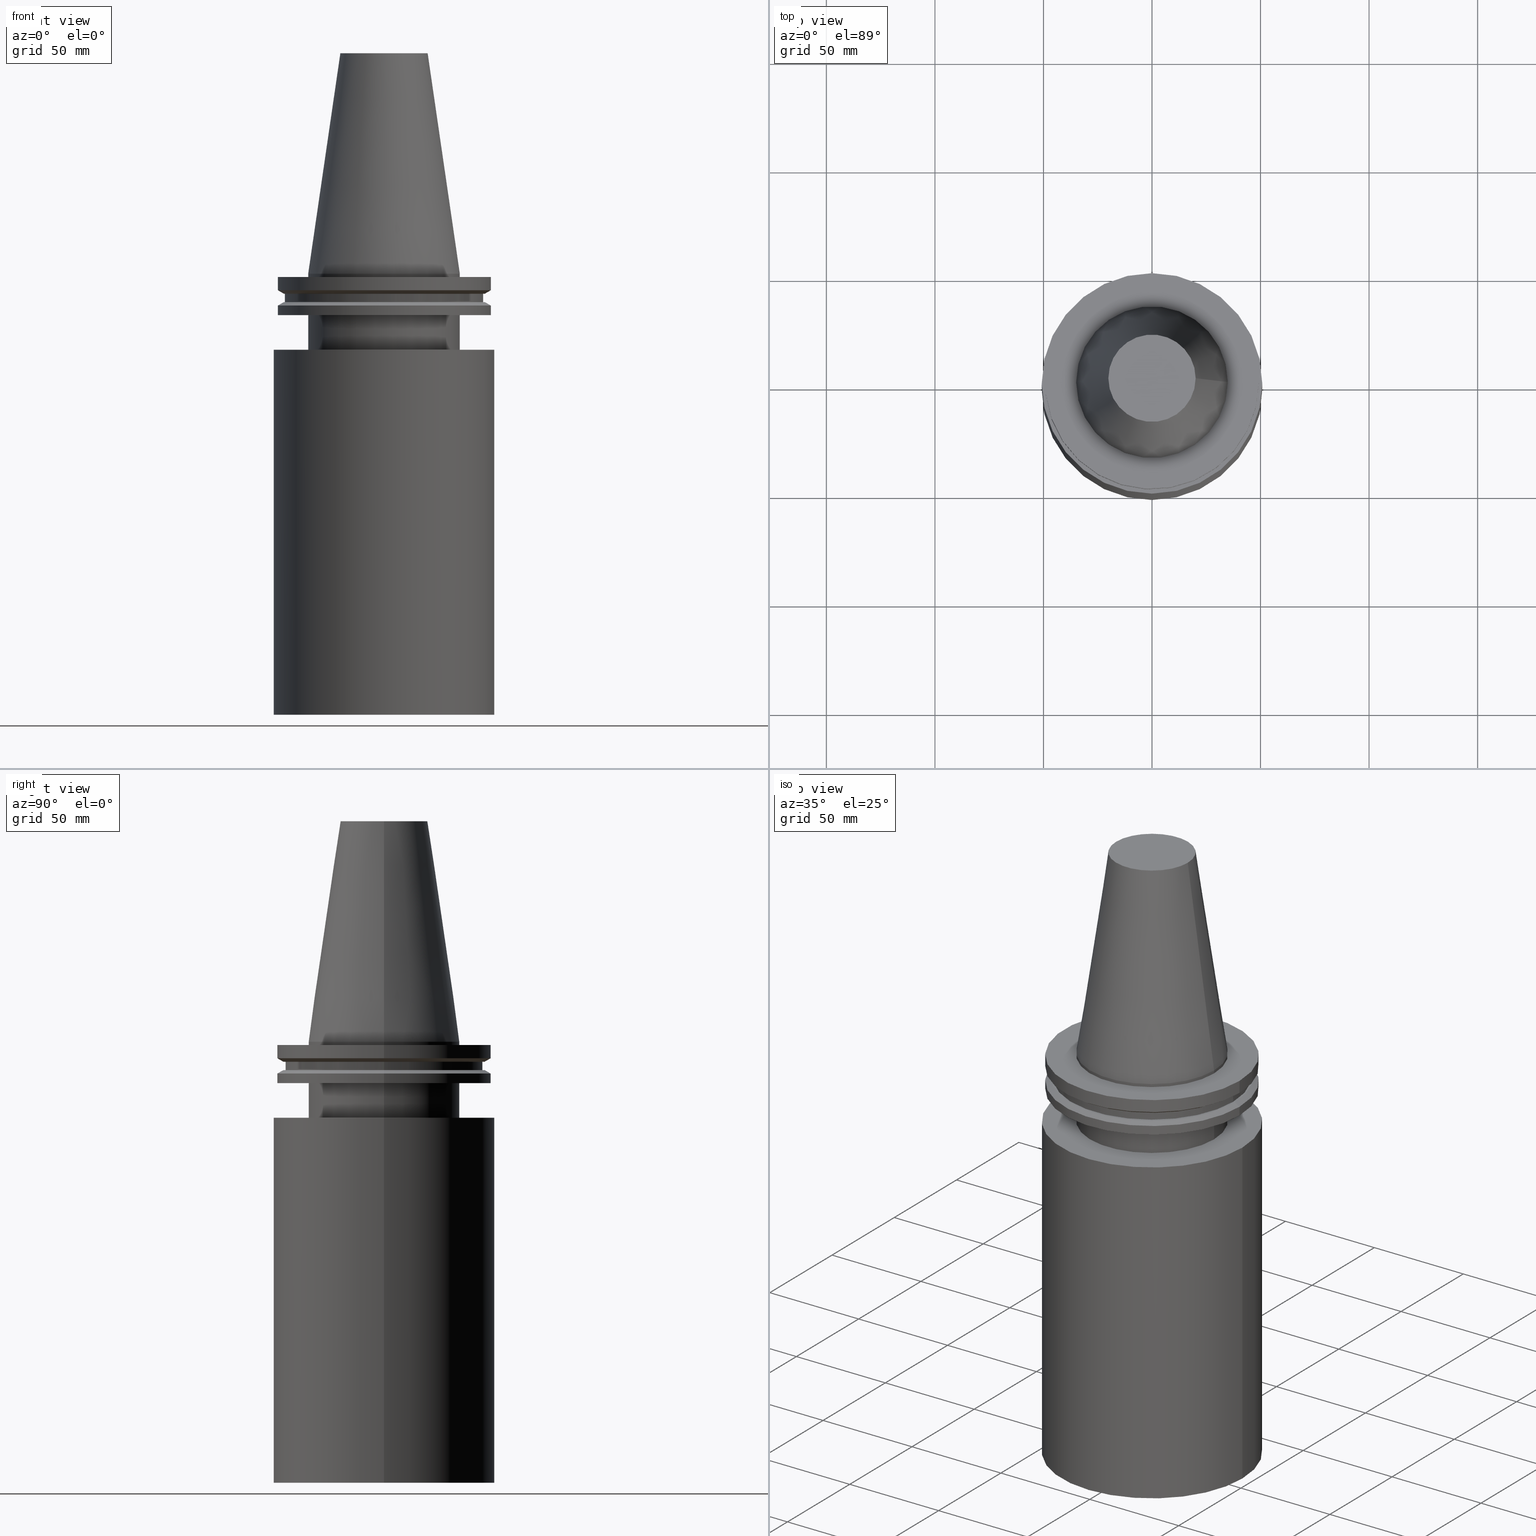
[diagram: canonical four-view strip — front | top / right | iso, engineering-drawing reading convention]
A machine part, canonical four-view strip (front | top / right | iso — engineering-drawing reading convention). The complete STEP part file that produces these views, byte-faithful:
ISO-10303-21;
HEADER;
FILE_DESCRIPTION (( 'STEP AP203' ),
    '1' );
FILE_NAME ('BVC50_BB4_000_8.stp',
    '2022-03-09T17:29:53',
    ( '' ),
    ( '' ),
    'SwSTEP 2.0',
    'SolidWorks 2021',
    '' );
FILE_SCHEMA (( 'CONFIG_CONTROL_DESIGN' ));
ENDSEC;

DATA;
#1 = ORIENTED_EDGE ( 'NONE', *, *, #232, .F. ) ;
#2 = ADVANCED_FACE ( 'NONE', ( #349, #250 ), #74, .T. ) ;
#3 = AXIS2_PLACEMENT_3D ( 'NONE', #51, #323, #321 ) ;
#4 = ORGANIZATION ( 'UNSPECIFIED', 'UNSPECIFIED', '' ) ;
#5 = DIRECTION ( 'NONE',  ( 1.000000000000000000, 0.000000000000000000, 0.000000000000000000 ) ) ;
#6 = EDGE_LOOP ( 'NONE', ( #1 ) ) ;
#7 = CARTESIAN_POINT ( 'NONE',  ( 49.21499999999999631, 0.000000000000000000, -1.499999999999987566 ) ) ;
#8 = ORIENTED_EDGE ( 'NONE', *, *, #375, .F. ) ;
#9 = APPROVAL ( #38, 'UNSPECIFIED' ) ;
#10 = ORIENTED_EDGE ( 'NONE', *, *, #235, .F. ) ;
#11 = CIRCLE ( 'NONE', #61, 50.79999999999999716 ) ;
#12 = CARTESIAN_POINT ( 'NONE',  ( 34.92499999999999716, 0.000000000000000000, -35.00000000000000000 ) ) ;
#13 = ORIENTED_EDGE ( 'NONE', *, *, #375, .T. ) ;
#14 = APPROVAL_ROLE ( '' ) ;
#15 = CARTESIAN_POINT ( 'NONE',  ( 0.000000000000000000, 0.000000000000000000, 0.000000000000000000 ) ) ;
#16 = DIRECTION ( 'NONE',  ( 1.000000000000000000, 0.000000000000000000, 0.000000000000000000 ) ) ;
#17 = APPROVAL_DATE_TIME ( #50, #312 ) ;
#18 = CIRCLE ( 'NONE', #96, 46.43919780457007818 ) ;
#19 = FACE_OUTER_BOUND ( 'NONE', #253, .T. ) ;
#20 = LOCAL_TIME ( 11, 29, 53.00000000000000000, #378 ) ;
#21 = PERSON_AND_ORGANIZATION ( #39, #4 ) ;
#22 = ADVANCED_FACE ( 'NONE', ( #166, #255 ), #261, .F. ) ;
#23 = DIRECTION ( 'NONE',  ( 1.000000000000000000, 0.000000000000000000, 0.000000000000000000 ) ) ;
#24 = DIRECTION ( 'NONE',  ( -0.000000000000000000, -0.000000000000000000, 1.000000000000000000 ) ) ;
#25 = FACE_OUTER_BOUND ( 'NONE', #124, .T. ) ;
#26 = FACE_BOUND ( 'NONE', #269, .T. ) ;
#27 = EDGE_CURVE ( 'NONE', #283, #283, #11, .T. ) ;
#28 = CARTESIAN_POINT ( 'NONE',  ( 0.000000000000000000, 0.000000000000000000, -35.00000000000000000 ) ) ;
#29 = CARTESIAN_POINT ( 'NONE',  ( 0.000000000000000000, 0.000000000000000000, -14.65761014474876944 ) ) ;
#30 = CIRCLE ( 'NONE', #252, 34.92499999999999716 ) ;
#31 = DIRECTION ( 'NONE',  ( 0.000000000000000000, -0.000000000000000000, 1.000000000000000000 ) ) ;
#32 = PERSON_AND_ORGANIZATION_ROLE ( 'design_owner' ) ;
#33 = EDGE_LOOP ( 'NONE', ( #190 ) ) ;
#34 = VERTEX_POINT ( 'NONE', #287 ) ;
#35 = ORIENTED_EDGE ( 'NONE', *, *, #80, .T. ) ;
#36 = ADVANCED_FACE ( 'NONE', ( #383, #19 ), #327, .F. ) ;
#37 = EDGE_LOOP ( 'NONE', ( #122 ) ) ;
#38 = APPROVAL_STATUS ( 'not_yet_approved' ) ;
#39 = PERSON ( 'UNSPECIFIED', 'UNSPECIFIED', 'UNSPECIFIED', ('UNSPECIFIED'), ('UNSPECIFIED'), ('UNSPECIFIED') ) ;
#40 = ORIENTED_EDGE ( 'NONE', *, *, #66, .T. ) ;
#41 = VERTEX_POINT ( 'NONE', #340 ) ;
#42 = EDGE_LOOP ( 'NONE', ( #282 ) ) ;
#43 = AXIS2_PLACEMENT_3D ( 'NONE', #168, #198, #257 ) ;
#44 = ADVANCED_FACE ( 'NONE', ( #385, #387 ), #380, .T. ) ;
#45 = CARTESIAN_POINT ( 'NONE',  ( 0.000000000000000000, 49.21499999999999631, -1.499999999999992895 ) ) ;
#46 = APPROVAL_STATUS ( 'not_yet_approved' ) ;
#47 = CARTESIAN_POINT ( 'NONE',  ( 0.000000000000000000, 0.000000000000000000, -9.204999999999991189 ) ) ;
#48 = PERSON_AND_ORGANIZATION_ROLE ( 'design_supplier' ) ;
#49 = DIRECTION ( 'NONE',  ( 1.000000000000000000, 0.000000000000000000, 0.000000000000000000 ) ) ;
#50 = DATE_AND_TIME ( #381, #20 ) ;
#51 = CARTESIAN_POINT ( 'NONE',  ( 0.000000000000000000, 0.000000000000000000, 101.5999999999999943 ) ) ;
#52 = CARTESIAN_POINT ( 'NONE',  ( 0.000000000000000000, 0.000000000000000000, -19.04999999999999716 ) ) ;
#53 = FACE_OUTER_BOUND ( 'NONE', #286, .T. ) ;
#54 = CARTESIAN_POINT ( 'NONE',  ( 0.000000000000000000, 49.21499999999998920, -19.04999999999999716 ) ) ;
#55 = MANIFOLD_SOLID_BREP ( 'BB', #181 ) ;
#56 = AXIS2_PLACEMENT_3D ( 'NONE', #337, #83, #305 ) ;
#57 = DATE_TIME_ROLE ( 'classification_date' ) ;
#58 = CARTESIAN_POINT ( 'NONE',  ( 0.000000000000000000, 0.000000000000000000, -14.65761014474876944 ) ) ;
#59 = DIRECTION ( 'NONE',  ( -0.000000000000000000, -0.000000000000000000, 1.000000000000000000 ) ) ;
#60 = CARTESIAN_POINT ( 'NONE',  ( 0.000000000000000000, 0.000000000000000000, 101.5999999999999943 ) ) ;
#61 = AXIS2_PLACEMENT_3D ( 'NONE', #265, #134, #23 ) ;
#62 = VERTEX_POINT ( 'NONE', #310 ) ;
#63 = EDGE_LOOP ( 'NONE', ( #40 ) ) ;
#64 = CARTESIAN_POINT ( 'NONE',  ( 45.64500000000000313, 0.000000000000000000, -9.204999999999991189 ) ) ;
#65 = EDGE_LOOP ( 'NONE', ( #218 ) ) ;
#66 = EDGE_CURVE ( 'NONE', #395, #395, #18, .T. ) ;
#67 = AXIS2_PLACEMENT_3D ( 'NONE', #52, #292, #171 ) ;
#68 = APPROVAL_PERSON_ORGANIZATION ( #329, #167, #14 ) ;
#69 = EDGE_LOOP ( 'NONE', ( #126 ) ) ;
#70 = VERTEX_POINT ( 'NONE', #151 ) ;
#71 = EDGE_LOOP ( 'NONE', ( #347 ) ) ;
#72 = EDGE_CURVE ( 'NONE', #62, #62, #289, .T. ) ;
#73 = PERSON_AND_ORGANIZATION_ROLE ( 'creator' ) ;
#74 = CYLINDRICAL_SURFACE ( 'NONE', #212, 34.92499999999999005 ) ;
#75 = CARTESIAN_POINT ( 'NONE',  ( 0.000000000000000000, 0.000000000000000000, -19.04999999999999716 ) ) ;
#76 = APPROVAL_DATE_TIME ( #105, #9 ) ;
#77 = PLANE ( 'NONE',  #103 ) ;
#78 = APPROVAL_ROLE ( '' ) ;
#79 = DIRECTION ( 'NONE',  ( 1.000000000000000000, 0.000000000000000000, 0.000000000000000000 ) ) ;
#80 = EDGE_CURVE ( 'NONE', #370, #370, #111, .T. ) ;
#81 = FACE_BOUND ( 'NONE', #156, .T. ) ;
#82 = AXIS2_PLACEMENT_3D ( 'NONE', #388, #360, #175 ) ;
#83 = DIRECTION ( 'NONE',  ( -0.000000000000000000, -0.000000000000000000, 1.000000000000000000 ) ) ;
#84 = CARTESIAN_POINT ( 'NONE',  ( 0.000000000000000000, 0.000000000000000000, 101.5999999999999943 ) ) ;
#85 = DIRECTION ( 'NONE',  ( -0.000000000000000000, -0.000000000000000000, 1.000000000000000000 ) ) ;
#86 = AXIS2_PLACEMENT_3D ( 'NONE', #117, #238, #363 ) ;
#87 = SECURITY_CLASSIFICATION ( '', '', #224 ) ;
#88 = CARTESIAN_POINT ( 'NONE',  ( 0.000000000000000000, 0.000000000000000000, -1.499999999999987566 ) ) ;
#89 = EDGE_CURVE ( 'NONE', #222, #222, #205, .T. ) ;
#90 = DIRECTION ( 'NONE',  ( 1.000000000000000000, 0.000000000000000000, 0.000000000000000000 ) ) ;
#91 = EDGE_LOOP ( 'NONE', ( #150 ) ) ;
#92 = VERTEX_POINT ( 'NONE', #182 ) ;
#93 = EDGE_LOOP ( 'NONE', ( #247 ) ) ;
#94 = MECHANICAL_CONTEXT ( 'NONE', #330, 'mechanical' ) ;
#95 = ORIENTED_EDGE ( 'NONE', *, *, #66, .F. ) ;
#96 = AXIS2_PLACEMENT_3D ( 'NONE', #170, #231, #264 ) ;
#97 = PRODUCT_DEFINITION_FORMATION_WITH_SPECIFIED_SOURCE ( 'ANY', '', #225, .NOT_KNOWN. ) ;
#98 = APPROVAL_ROLE ( '' ) ;
#99 = EDGE_LOOP ( 'NONE', ( #220 ) ) ;
#100 = EDGE_LOOP ( 'NONE', ( #245 ) ) ;
#101 = ADVANCED_FACE ( 'NONE', ( #234, #108 ), #357, .T. ) ;
#102 = CARTESIAN_POINT ( 'NONE',  ( 0.000000000000000000, 0.000000000000000000, 101.5999999999999943 ) ) ;
#103 = AXIS2_PLACEMENT_3D ( 'NONE', #45, #331, #195 ) ;
#104 = AXIS2_PLACEMENT_3D ( 'NONE', #243, #361, #202 ) ;
#105 = DATE_AND_TIME ( #259, #206 ) ;
#106 = ADVANCED_FACE ( 'NONE', ( #81, #200 ), #77, .F. ) ;
#107 = APPROVAL_PERSON_ORGANIZATION ( #227, #312, #78 ) ;
#108 = FACE_OUTER_BOUND ( 'NONE', #71, .T. ) ;
#109 = DIRECTION ( 'NONE',  ( -0.000000000000000000, -0.000000000000000000, 1.000000000000000000 ) ) ;
#110 = DIRECTION ( 'NONE',  ( -0.000000000000000000, -0.000000000000000000, 1.000000000000000000 ) ) ;
#111 = CIRCLE ( 'NONE', #382, 20.10819343178871321 ) ;
#112 = FACE_OUTER_BOUND ( 'NONE', #69, .T. ) ;
#113 =( GEOMETRIC_REPRESENTATION_CONTEXT ( 3 ) GLOBAL_UNCERTAINTY_ASSIGNED_CONTEXT ( ( #366 ) ) GLOBAL_UNIT_ASSIGNED_CONTEXT ( ( #367, #211, #125 ) ) REPRESENTATION_CONTEXT ( 'NONE', 'WORKASPACE' ) );
#114 = EDGE_CURVE ( 'NONE', #155, #155, #239, .T. ) ;
#115 = FACE_OUTER_BOUND ( 'NONE', #185, .T. ) ;
#116 = FACE_OUTER_BOUND ( 'NONE', #162, .T. ) ;
#117 = CARTESIAN_POINT ( 'NONE',  ( 0.000000000000000000, 20.10819343178871321, 101.5999999999999943 ) ) ;
#118 = EDGE_CURVE ( 'NONE', #123, #123, #163, .T. ) ;
#119 = FACE_BOUND ( 'NONE', #315, .T. ) ;
#120 = PLANE ( 'NONE',  #104 ) ;
#121 = CARTESIAN_POINT ( 'NONE',  ( 49.21499999999998920, 0.000000000000000000, -19.04999999999999716 ) ) ;
#122 = ORIENTED_EDGE ( 'NONE', *, *, #89, .T. ) ;
#123 = VERTEX_POINT ( 'NONE', #160 ) ;
#124 = EDGE_LOOP ( 'NONE', ( #284 ) ) ;
#125 =( NAMED_UNIT ( * ) SI_UNIT ( $, .STERADIAN. ) SOLID_ANGLE_UNIT ( ) );
#126 = ORIENTED_EDGE ( 'NONE', *, *, #72, .F. ) ;
#127 = CARTESIAN_POINT ( 'NONE',  ( 46.43919780457007818, 0.000000000000000000, -9.204999999999991189 ) ) ;
#128 = EDGE_CURVE ( 'NONE', #34, #34, #130, .T. ) ;
#129 = EDGE_LOOP ( 'NONE', ( #278 ) ) ;
#130 = CIRCLE ( 'NONE', #244, 34.92499999999999005 ) ;
#131 = LOCAL_TIME ( 11, 29, 53.00000000000000000, #297 ) ;
#132 = CARTESIAN_POINT ( 'NONE',  ( 45.64500000000000313, 0.000000000000000000, -13.05499999999999794 ) ) ;
#133 = EDGE_LOOP ( 'NONE', ( #223 ) ) ;
#134 = DIRECTION ( 'NONE',  ( -0.000000000000000000, -0.000000000000000000, 1.000000000000000000 ) ) ;
#135 = DIRECTION ( 'NONE',  ( -0.000000000000000000, -0.000000000000000000, 1.000000000000000000 ) ) ;
#136 = AXIS2_PLACEMENT_3D ( 'NONE', #88, #336, #179 ) ;
#137 = CONICAL_SURFACE ( 'NONE', #82, 34.92499999999999005, 0.1448138465474119452 ) ;
#138 = DIRECTION ( 'NONE',  ( 1.000000000000000000, 0.000000000000000000, 0.000000000000000000 ) ) ;
#139 = DATE_AND_TIME ( #348, #369 ) ;
#140 = CARTESIAN_POINT ( 'NONE',  ( 0.000000000000000000, 45.64500000000000313, -13.05499999999999794 ) ) ;
#141 = DIRECTION ( 'NONE',  ( -1.000000000000000000, 0.000000000000000000, -0.000000000000000000 ) ) ;
#142 = DIRECTION ( 'NONE',  ( 0.000000000000000000, -0.000000000000000000, 1.000000000000000000 ) ) ;
#143 = AXIS2_PLACEMENT_3D ( 'NONE', #54, #31, #276 ) ;
#144 = DIRECTION ( 'NONE',  ( -0.000000000000000000, -0.000000000000000000, 1.000000000000000000 ) ) ;
#145 = DIRECTION ( 'NONE',  ( 1.000000000000000000, 0.000000000000000000, 0.000000000000000000 ) ) ;
#146 = DIRECTION ( 'NONE',  ( 0.000000000000000000, 0.000000000000000000, -1.000000000000000000 ) ) ;
#147 = AXIS2_PLACEMENT_3D ( 'NONE', #304, #365, #302 ) ;
#148 = CC_DESIGN_APPROVAL ( #167, ( #87 ) ) ;
#149 = DIRECTION ( 'NONE',  ( -1.000000000000000000, 0.000000000000000000, 0.000000000000000000 ) ) ;
#150 = ORIENTED_EDGE ( 'NONE', *, *, #235, .T. ) ;
#151 = CARTESIAN_POINT ( 'NONE',  ( 49.21499999999998920, 0.000000000000000000, -14.65761014474876944 ) ) ;
#152 = ORIENTED_EDGE ( 'NONE', *, *, #118, .T. ) ;
#153 = AXIS2_PLACEMENT_3D ( 'NONE', #140, #230, #325 ) ;
#154 = CC_DESIGN_SECURITY_CLASSIFICATION ( #87, ( #97 ) ) ;
#155 = VERTEX_POINT ( 'NONE', #121 ) ;
#156 = EDGE_LOOP ( 'NONE', ( #342 ) ) ;
#157 = ADVANCED_FACE ( 'NONE', ( #112, #228 ), #236, .T. ) ;
#158 = VERTEX_POINT ( 'NONE', #372 ) ;
#159 = ORIENTED_EDGE ( 'NONE', *, *, #176, .T. ) ;
#160 = CARTESIAN_POINT ( 'NONE',  ( 46.43919780457007818, 0.000000000000000000, -13.05499999999999794 ) ) ;
#161 = PRODUCT_DEFINITION ( 'UNKNOWN', '', #97, #241 ) ;
#162 = EDGE_LOOP ( 'NONE', ( #10 ) ) ;
#163 = CIRCLE ( 'NONE', #43, 46.43919780457007818 ) ;
#164 = AXIS2_PLACEMENT_3D ( 'NONE', #270, #144, #389 ) ;
#165 = DIRECTION ( 'NONE',  ( -0.000000000000000000, -0.000000000000000000, 1.000000000000000000 ) ) ;
#166 = FACE_BOUND ( 'NONE', #6, .T. ) ;
#167 = APPROVAL ( #46, 'UNSPECIFIED' ) ;
#168 = CARTESIAN_POINT ( 'NONE',  ( 0.000000000000000000, 0.000000000000000000, -13.05499999999999794 ) ) ;
#169 = DATE_TIME_ROLE ( 'creation_date' ) ;
#170 = CARTESIAN_POINT ( 'NONE',  ( 0.000000000000000000, 0.000000000000000000, -9.204999999999991189 ) ) ;
#171 = DIRECTION ( 'NONE',  ( 1.000000000000000000, 0.000000000000000000, 0.000000000000000000 ) ) ;
#172 = PRODUCT_RELATED_PRODUCT_CATEGORY ( 'detail', '', ( #225 ) ) ;
#173 = CYLINDRICAL_SURFACE ( 'NONE', #267, 45.64500000000000313 ) ;
#174 = CIRCLE ( 'NONE', #147, 50.79999999999999716 ) ;
#175 = DIRECTION ( 'NONE',  ( -1.000000000000000000, 0.000000000000000000, 0.000000000000000000 ) ) ;
#176 = EDGE_CURVE ( 'NONE', #217, #217, #328, .T. ) ;
#177 = DIRECTION ( 'NONE',  ( 1.000000000000000000, 0.000000000000000000, 0.000000000000000000 ) ) ;
#178 = EDGE_CURVE ( 'NONE', #158, #158, #174, .T. ) ;
#179 = DIRECTION ( 'NONE',  ( 1.000000000000000000, 0.000000000000000000, 0.000000000000000000 ) ) ;
#180 = CARTESIAN_POINT ( 'NONE',  ( 0.000000000000000000, 46.43919780457007818, -9.204999999999998295 ) ) ;
#181 = CLOSED_SHELL ( 'NONE', ( #368, #183, #157, #279, #199, #260, #36, #263, #275, #394, #44, #106, #2, #22, #101, #362 ) ) ;
#182 = CARTESIAN_POINT ( 'NONE',  ( 49.21500000000000341, 0.000000000000000000, -7.602389855251287187 ) ) ;
#183 = ADVANCED_FACE ( 'NONE', ( #115 ), #390, .F. ) ;
#184 = ORIENTED_EDGE ( 'NONE', *, *, #201, .T. ) ;
#185 = EDGE_LOOP ( 'NONE', ( #35 ) ) ;
#186 = AXIS2_PLACEMENT_3D ( 'NONE', #102, #109, #293 ) ;
#187 = APPLICATION_PROTOCOL_DEFINITION ( 'international standard', 'config_control_design', 1994, #191 ) ;
#188 = EDGE_LOOP ( 'NONE', ( #95 ) ) ;
#189 = CARTESIAN_POINT ( 'NONE',  ( 50.79999999999999716, 0.000000000000000000, -35.00000000000000000 ) ) ;
#190 = ORIENTED_EDGE ( 'NONE', *, *, #27, .F. ) ;
#191 = APPLICATION_CONTEXT ( 'configuration controlled 3d designs of mechanical parts and assemblies' ) ;
#192 = DIRECTION ( 'NONE',  ( 1.000000000000000000, 0.000000000000000000, 0.000000000000000000 ) ) ;
#193 = COORDINATED_UNIVERSAL_TIME_OFFSET ( 6, 0, .BEHIND. ) ;
#194 = DIRECTION ( 'NONE',  ( 0.000000000000000000, 0.000000000000000000, -1.000000000000000000 ) ) ;
#195 = DIRECTION ( 'NONE',  ( -1.000000000000000000, 0.000000000000000000, -0.000000000000000000 ) ) ;
#196 = CC_DESIGN_DATE_AND_TIME_ASSIGNMENT ( #303, #169, ( #161 ) ) ;
#197 = PERSON_AND_ORGANIZATION_ROLE ( 'creator' ) ;
#198 = DIRECTION ( 'NONE',  ( -0.000000000000000000, -0.000000000000000000, 1.000000000000000000 ) ) ;
#199 = ADVANCED_FACE ( 'NONE', ( #308, #272 ), #207, .T. ) ;
#200 = FACE_OUTER_BOUND ( 'NONE', #37, .T. ) ;
#201 = EDGE_CURVE ( 'NONE', #41, #41, #258, .T. ) ;
#202 = DIRECTION ( 'NONE',  ( 1.000000000000000000, 0.000000000000000000, 0.000000000000000000 ) ) ;
#203 = DIRECTION ( 'NONE',  ( 1.000000000000000000, 0.000000000000000000, 0.000000000000000000 ) ) ;
#204 = EDGE_CURVE ( 'NONE', #70, #70, #295, .T. ) ;
#205 = CIRCLE ( 'NONE', #339, 49.21499999999999631 ) ;
#206 = LOCAL_TIME ( 11, 29, 53.00000000000000000, #324 ) ;
#207 = CYLINDRICAL_SURFACE ( 'NONE', #313, 49.21499999999998920 ) ;
#208 = ADVANCED_BREP_SHAPE_REPRESENTATION ( 'BVC50_BB4_000_8', ( #55, #281 ), #113 ) ;
#209 = DIRECTION ( 'NONE',  ( -0.000000000000000000, -0.000000000000000000, 1.000000000000000000 ) ) ;
#210 = FACE_OUTER_BOUND ( 'NONE', #42, .T. ) ;
#211 =( NAMED_UNIT ( * ) PLANE_ANGLE_UNIT ( ) SI_UNIT ( $, .RADIAN. ) );
#212 = AXIS2_PLACEMENT_3D ( 'NONE', #309, #294, #79 ) ;
#213 = CC_DESIGN_APPROVAL ( #312, ( #97 ) ) ;
#214 = CC_DESIGN_PERSON_AND_ORGANIZATION_ASSIGNMENT ( #351, #322, ( #87 ) ) ;
#215 = DIRECTION ( 'NONE',  ( 1.000000000000000000, 0.000000000000000000, 0.000000000000000000 ) ) ;
#216 = EDGE_LOOP ( 'NONE', ( #377 ) ) ;
#217 = VERTEX_POINT ( 'NONE', #64 ) ;
#218 = ORIENTED_EDGE ( 'NONE', *, *, #27, .T. ) ;
#219 = CARTESIAN_POINT ( 'NONE',  ( 0.000000000000000000, 0.000000000000000000, -9.204999999999991189 ) ) ;
#220 = ORIENTED_EDGE ( 'NONE', *, *, #128, .F. ) ;
#221 = CIRCLE ( 'NONE', #56, 49.21500000000000341 ) ;
#222 = VERTEX_POINT ( 'NONE', #7 ) ;
#223 = ORIENTED_EDGE ( 'NONE', *, *, #204, .T. ) ;
#224 = SECURITY_CLASSIFICATION_LEVEL ( 'unclassified' ) ;
#225 = PRODUCT ( 'BVC50_BB4_000_8', 'BVC50_BB4_000_8', '', ( #94 ) ) ;
#226 = ORIENTED_EDGE ( 'NONE', *, *, #118, .F. ) ;
#227 = PERSON_AND_ORGANIZATION ( #39, #4 ) ;
#228 = FACE_OUTER_BOUND ( 'NONE', #100, .T. ) ;
#229 = DATE_AND_TIME ( #233, #131 ) ;
#230 = DIRECTION ( 'NONE',  ( 0.000000000000000000, 0.000000000000000000, -1.000000000000000000 ) ) ;
#231 = DIRECTION ( 'NONE',  ( -0.000000000000000000, -0.000000000000000000, 1.000000000000000000 ) ) ;
#232 = EDGE_CURVE ( 'NONE', #280, #280, #30, .T. ) ;
#233 = CALENDAR_DATE ( 2022, 9, 3 ) ;
#234 = FACE_OUTER_BOUND ( 'NONE', #33, .T. ) ;
#235 = EDGE_CURVE ( 'NONE', #92, #92, #221, .T. ) ;
#236 = CYLINDRICAL_SURFACE ( 'NONE', #3, 34.92499999999999716 ) ;
#237 = FACE_OUTER_BOUND ( 'NONE', #188, .T. ) ;
#238 = DIRECTION ( 'NONE',  ( 0.000000000000000000, 0.000000000000000000, -1.000000000000000000 ) ) ;
#239 = CIRCLE ( 'NONE', #67, 49.21499999999998920 ) ;
#240 = DIRECTION ( 'NONE',  ( 1.000000000000000000, 0.000000000000000000, 0.000000000000000000 ) ) ;
#241 = DESIGN_CONTEXT ( 'detailed design', #191, 'design' ) ;
#242 = PLANE ( 'NONE',  #290 ) ;
#243 = CARTESIAN_POINT ( 'NONE',  ( 0.000000000000000000, 50.79999999999999716, -203.1999999999999886 ) ) ;
#244 = AXIS2_PLACEMENT_3D ( 'NONE', #15, #24, #16 ) ;
#245 = ORIENTED_EDGE ( 'NONE', *, *, #232, .T. ) ;
#246 = CARTESIAN_POINT ( 'NONE',  ( 20.10819343178871321, 0.000000000000000000, 101.5999999999999801 ) ) ;
#247 = ORIENTED_EDGE ( 'NONE', *, *, #178, .F. ) ;
#248 = PRODUCT_DEFINITION_SHAPE ( 'NONE', 'NONE',  #161 ) ;
#249 = DIRECTION ( 'NONE',  ( 0.000000000000000000, 0.000000000000000000, 1.000000000000000000 ) ) ;
#250 = FACE_OUTER_BOUND ( 'NONE', #288, .T. ) ;
#251 = ORIENTED_EDGE ( 'NONE', *, *, #72, .T. ) ;
#252 = AXIS2_PLACEMENT_3D ( 'NONE', #28, #209, #203 ) ;
#253 = EDGE_LOOP ( 'NONE', ( #152 ) ) ;
#254 = PERSON_AND_ORGANIZATION ( #39, #4 ) ;
#255 = FACE_OUTER_BOUND ( 'NONE', #65, .T. ) ;
#256 = PERSON_AND_ORGANIZATION ( #39, #4 ) ;
#257 = DIRECTION ( 'NONE',  ( 1.000000000000000000, 0.000000000000000000, 0.000000000000000000 ) ) ;
#258 = CIRCLE ( 'NONE', #136, 34.92499999999999005 ) ;
#259 = CALENDAR_DATE ( 2022, 9, 3 ) ;
#260 = ADVANCED_FACE ( 'NONE', ( #26, #333 ), #335, .T. ) ;
#261 = PLANE ( 'NONE',  #343 ) ;
#262 = SHAPE_DEFINITION_REPRESENTATION ( #248, #208 ) ;
#263 = ADVANCED_FACE ( 'NONE', ( #274, #53 ), #173, .T. ) ;
#264 = DIRECTION ( 'NONE',  ( 1.000000000000000000, 0.000000000000000000, 0.000000000000000000 ) ) ;
#265 = CARTESIAN_POINT ( 'NONE',  ( 0.000000000000000000, 0.000000000000000000, -35.00000000000000000 ) ) ;
#266 = AXIS2_PLACEMENT_3D ( 'NONE', #359, #355, #192 ) ;
#267 = AXIS2_PLACEMENT_3D ( 'NONE', #60, #392, #90 ) ;
#268 = DIRECTION ( 'NONE',  ( 1.000000000000000000, 0.000000000000000000, 0.000000000000000000 ) ) ;
#269 = EDGE_LOOP ( 'NONE', ( #226 ) ) ;
#270 = CARTESIAN_POINT ( 'NONE',  ( 0.000000000000000000, 0.000000000000000000, -13.05499999999999794 ) ) ;
#271 = CC_DESIGN_PERSON_AND_ORGANIZATION_ASSIGNMENT ( #254, #73, ( #161 ) ) ;
#272 = FACE_OUTER_BOUND ( 'NONE', #311, .T. ) ;
#273 = APPROVAL_PERSON_ORGANIZATION ( #316, #9, #98 ) ;
#274 = FACE_OUTER_BOUND ( 'NONE', #319, .T. ) ;
#275 = ADVANCED_FACE ( 'NONE', ( #237, #119 ), #242, .F. ) ;
#276 = DIRECTION ( 'NONE',  ( 1.000000000000000000, 0.000000000000000000, 0.000000000000000000 ) ) ;
#277 = DIRECTION ( 'NONE',  ( -0.000000000000000000, -0.000000000000000000, 1.000000000000000000 ) ) ;
#278 = ORIENTED_EDGE ( 'NONE', *, *, #89, .F. ) ;
#279 = ADVANCED_FACE ( 'NONE', ( #210, #300 ), #338, .F. ) ;
#280 = VERTEX_POINT ( 'NONE', #12 ) ;
#281 = AXIS2_PLACEMENT_3D ( 'NONE', #346, #249, #215 ) ;
#282 = ORIENTED_EDGE ( 'NONE', *, *, #114, .F. ) ;
#283 = VERTEX_POINT ( 'NONE', #189 ) ;
#284 = ORIENTED_EDGE ( 'NONE', *, *, #128, .T. ) ;
#285 = VERTEX_POINT ( 'NONE', #132 ) ;
#286 = EDGE_LOOP ( 'NONE', ( #13 ) ) ;
#287 = CARTESIAN_POINT ( 'NONE',  ( 34.92499999999999005, 0.000000000000000000, 0.000000000000000000 ) ) ;
#288 = EDGE_LOOP ( 'NONE', ( #184 ) ) ;
#289 = CIRCLE ( 'NONE', #306, 34.92499999999999716 ) ;
#290 = AXIS2_PLACEMENT_3D ( 'NONE', #180, #142, #268 ) ;
#291 = COORDINATED_UNIVERSAL_TIME_OFFSET ( 6, 0, .BEHIND. ) ;
#292 = DIRECTION ( 'NONE',  ( -0.000000000000000000, -0.000000000000000000, 1.000000000000000000 ) ) ;
#293 = DIRECTION ( 'NONE',  ( 1.000000000000000000, 0.000000000000000000, 0.000000000000000000 ) ) ;
#294 = DIRECTION ( 'NONE',  ( -0.000000000000000000, -0.000000000000000000, 1.000000000000000000 ) ) ;
#295 = CIRCLE ( 'NONE', #384, 49.21499999999998920 ) ;
#296 = CIRCLE ( 'NONE', #164, 45.64500000000000313 ) ;
#297 = COORDINATED_UNIVERSAL_TIME_OFFSET ( 6, 0, .BEHIND. ) ;
#298 = CARTESIAN_POINT ( 'NONE',  ( 0.000000000000000000, 0.000000000000000000, -35.00000000000000000 ) ) ;
#299 = DIRECTION ( 'NONE',  ( 1.000000000000000000, 0.000000000000000000, 0.000000000000000000 ) ) ;
#300 = FACE_BOUND ( 'NONE', #379, .T. ) ;
#301 = CONICAL_SURFACE ( 'NONE', #307, 46.43919780457007818, 1.047197551196575205 ) ;
#302 = DIRECTION ( 'NONE',  ( 1.000000000000000000, 0.000000000000000000, 0.000000000000000000 ) ) ;
#303 = DATE_AND_TIME ( #354, #391 ) ;
#304 = CARTESIAN_POINT ( 'NONE',  ( 0.000000000000000000, 0.000000000000000000, -203.1999999999999886 ) ) ;
#305 = DIRECTION ( 'NONE',  ( 1.000000000000000000, 0.000000000000000000, 0.000000000000000000 ) ) ;
#306 = AXIS2_PLACEMENT_3D ( 'NONE', #75, #165, #138 ) ;
#307 = AXIS2_PLACEMENT_3D ( 'NONE', #219, #277, #5 ) ;
#308 = FACE_OUTER_BOUND ( 'NONE', #216, .T. ) ;
#309 = CARTESIAN_POINT ( 'NONE',  ( 0.000000000000000000, 0.000000000000000000, 101.5999999999999943 ) ) ;
#310 = CARTESIAN_POINT ( 'NONE',  ( 34.92499999999999716, 0.000000000000000000, -19.04999999999999716 ) ) ;
#311 = EDGE_LOOP ( 'NONE', ( #376 ) ) ;
#312 = APPROVAL ( #326, 'UNSPECIFIED' ) ;
#313 = AXIS2_PLACEMENT_3D ( 'NONE', #84, #59, #240 ) ;
#314 = AXIS2_PLACEMENT_3D ( 'NONE', #29, #146, #149 ) ;
#315 = EDGE_LOOP ( 'NONE', ( #159 ) ) ;
#316 = PERSON_AND_ORGANIZATION ( #39, #4 ) ;
#317 = ORIENTED_EDGE ( 'NONE', *, *, #80, .F. ) ;
#318 = FACE_BOUND ( 'NONE', #63, .T. ) ;
#319 = EDGE_LOOP ( 'NONE', ( #373 ) ) ;
#320 = CC_DESIGN_PERSON_AND_ORGANIZATION_ASSIGNMENT ( #21, #48, ( #97 ) ) ;
#321 = DIRECTION ( 'NONE',  ( 1.000000000000000000, 0.000000000000000000, 0.000000000000000000 ) ) ;
#322 = PERSON_AND_ORGANIZATION_ROLE ( 'classification_officer' ) ;
#323 = DIRECTION ( 'NONE',  ( -0.000000000000000000, -0.000000000000000000, 1.000000000000000000 ) ) ;
#324 = COORDINATED_UNIVERSAL_TIME_OFFSET ( 6, 0, .BEHIND. ) ;
#325 = DIRECTION ( 'NONE',  ( -1.000000000000000000, 0.000000000000000000, -0.000000000000000000 ) ) ;
#326 = APPROVAL_STATUS ( 'not_yet_approved' ) ;
#327 = PLANE ( 'NONE',  #153 ) ;
#328 = CIRCLE ( 'NONE', #334, 45.64500000000000313 ) ;
#329 = PERSON_AND_ORGANIZATION ( #39, #4 ) ;
#330 = APPLICATION_CONTEXT ( 'configuration controlled 3d designs of mechanical parts and assemblies' ) ;
#331 = DIRECTION ( 'NONE',  ( 0.000000000000000000, 0.000000000000000000, -1.000000000000000000 ) ) ;
#332 = FACE_BOUND ( 'NONE', #345, .T. ) ;
#333 = FACE_OUTER_BOUND ( 'NONE', #133, .T. ) ;
#334 = AXIS2_PLACEMENT_3D ( 'NONE', #47, #135, #145 ) ;
#335 = CONICAL_SURFACE ( 'NONE', #314, 49.21499999999998920, 1.047197551196554333 ) ;
#336 = DIRECTION ( 'NONE',  ( -0.000000000000000000, -0.000000000000000000, 1.000000000000000000 ) ) ;
#337 = CARTESIAN_POINT ( 'NONE',  ( 0.000000000000000000, 0.000000000000000000, -7.602389855251287187 ) ) ;
#338 = PLANE ( 'NONE',  #143 ) ;
#339 = AXIS2_PLACEMENT_3D ( 'NONE', #350, #110, #299 ) ;
#340 = CARTESIAN_POINT ( 'NONE',  ( 34.92499999999999005, 0.000000000000000000, -1.499999999999987566 ) ) ;
#341 = CC_DESIGN_PERSON_AND_ORGANIZATION_ASSIGNMENT ( #344, #32, ( #225 ) ) ;
#342 = ORIENTED_EDGE ( 'NONE', *, *, #201, .F. ) ;
#343 = AXIS2_PLACEMENT_3D ( 'NONE', #298, #194, #141 ) ;
#344 = PERSON_AND_ORGANIZATION ( #39, #4 ) ;
#345 = EDGE_LOOP ( 'NONE', ( #317 ) ) ;
#346 = CARTESIAN_POINT ( 'NONE',  ( 0.000000000000000000, 0.000000000000000000, 0.000000000000000000 ) ) ;
#347 = ORIENTED_EDGE ( 'NONE', *, *, #178, .T. ) ;
#348 = CALENDAR_DATE ( 2022, 9, 3 ) ;
#349 = FACE_OUTER_BOUND ( 'NONE', #99, .T. ) ;
#350 = CARTESIAN_POINT ( 'NONE',  ( 0.000000000000000000, 0.000000000000000000, -1.499999999999987566 ) ) ;
#351 = PERSON_AND_ORGANIZATION ( #39, #4 ) ;
#352 = CC_DESIGN_PERSON_AND_ORGANIZATION_ASSIGNMENT ( #256, #197, ( #97 ) ) ;
#353 = DIRECTION ( 'NONE',  ( -0.000000000000000000, -0.000000000000000000, 1.000000000000000000 ) ) ;
#354 = CALENDAR_DATE ( 2022, 9, 3 ) ;
#355 = DIRECTION ( 'NONE',  ( -0.000000000000000000, -0.000000000000000000, 1.000000000000000000 ) ) ;
#356 = APPROVAL_DATE_TIME ( #139, #167 ) ;
#357 = CYLINDRICAL_SURFACE ( 'NONE', #266, 50.79999999999999716 ) ;
#358 = CC_DESIGN_APPROVAL ( #9, ( #161 ) ) ;
#359 = CARTESIAN_POINT ( 'NONE',  ( 0.000000000000000000, 0.000000000000000000, 0.000000000000000000 ) ) ;
#360 = DIRECTION ( 'NONE',  ( 0.000000000000000000, 0.000000000000000000, -1.000000000000000000 ) ) ;
#361 = DIRECTION ( 'NONE',  ( 0.000000000000000000, -0.000000000000000000, 1.000000000000000000 ) ) ;
#362 = ADVANCED_FACE ( 'NONE', ( #393 ), #120, .F. ) ;
#363 = DIRECTION ( 'NONE',  ( -1.000000000000000000, 0.000000000000000000, -0.000000000000000000 ) ) ;
#364 = CC_DESIGN_DATE_AND_TIME_ASSIGNMENT ( #229, #57, ( #87 ) ) ;
#365 = DIRECTION ( 'NONE',  ( -0.000000000000000000, -0.000000000000000000, 1.000000000000000000 ) ) ;
#366 = UNCERTAINTY_MEASURE_WITH_UNIT (LENGTH_MEASURE( 1.000000000000000082E-05 ), #367, 'distance_accuracy_value', 'NONE');
#367 =( LENGTH_UNIT ( ) NAMED_UNIT ( * ) SI_UNIT ( .MILLI., .METRE. ) );
#368 = ADVANCED_FACE ( 'NONE', ( #332, #25 ), #137, .T. ) ;
#369 = LOCAL_TIME ( 11, 29, 53.00000000000000000, #193 ) ;
#370 = VERTEX_POINT ( 'NONE', #246 ) ;
#371 = EDGE_LOOP ( 'NONE', ( #8 ) ) ;
#372 = CARTESIAN_POINT ( 'NONE',  ( 50.79999999999999716, 0.000000000000000000, -203.1999999999999886 ) ) ;
#373 = ORIENTED_EDGE ( 'NONE', *, *, #176, .F. ) ;
#374 = APPLICATION_PROTOCOL_DEFINITION ( 'international standard', 'config_control_design', 1994, #330 ) ;
#375 = EDGE_CURVE ( 'NONE', #285, #285, #296, .T. ) ;
#376 = ORIENTED_EDGE ( 'NONE', *, *, #114, .T. ) ;
#377 = ORIENTED_EDGE ( 'NONE', *, *, #204, .F. ) ;
#378 = COORDINATED_UNIVERSAL_TIME_OFFSET ( 6, 0, .BEHIND. ) ;
#379 = EDGE_LOOP ( 'NONE', ( #251 ) ) ;
#380 = CYLINDRICAL_SURFACE ( 'NONE', #186, 49.21499999999999631 ) ;
#381 = CALENDAR_DATE ( 2022, 9, 3 ) ;
#382 = AXIS2_PLACEMENT_3D ( 'NONE', #386, #353, #49 ) ;
#383 = FACE_BOUND ( 'NONE', #371, .T. ) ;
#384 = AXIS2_PLACEMENT_3D ( 'NONE', #58, #85, #177 ) ;
#385 = FACE_OUTER_BOUND ( 'NONE', #129, .T. ) ;
#386 = CARTESIAN_POINT ( 'NONE',  ( 0.000000000000000000, 0.000000000000000000, 101.5999999999999801 ) ) ;
#387 = FACE_OUTER_BOUND ( 'NONE', #91, .T. ) ;
#388 = CARTESIAN_POINT ( 'NONE',  ( 0.000000000000000000, 0.000000000000000000, 0.000000000000000000 ) ) ;
#389 = DIRECTION ( 'NONE',  ( 1.000000000000000000, 0.000000000000000000, 0.000000000000000000 ) ) ;
#390 = PLANE ( 'NONE',  #86 ) ;
#391 = LOCAL_TIME ( 11, 29, 53.00000000000000000, #291 ) ;
#392 = DIRECTION ( 'NONE',  ( -0.000000000000000000, -0.000000000000000000, 1.000000000000000000 ) ) ;
#393 = FACE_OUTER_BOUND ( 'NONE', #93, .T. ) ;
#394 = ADVANCED_FACE ( 'NONE', ( #116, #318 ), #301, .T. ) ;
#395 = VERTEX_POINT ( 'NONE', #127 ) ;
ENDSEC;
END-ISO-10303-21;
